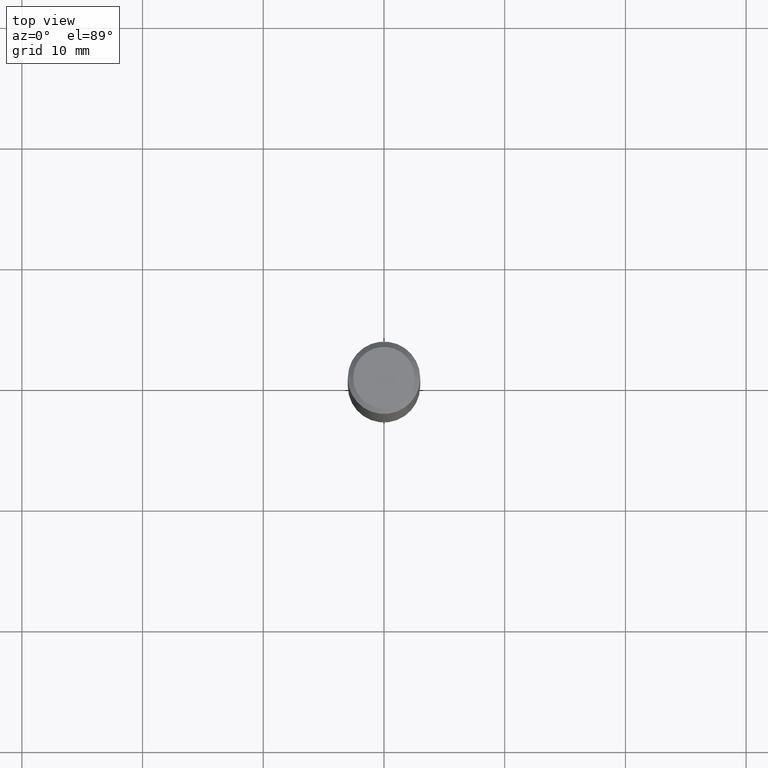
[diagram: clean part render]
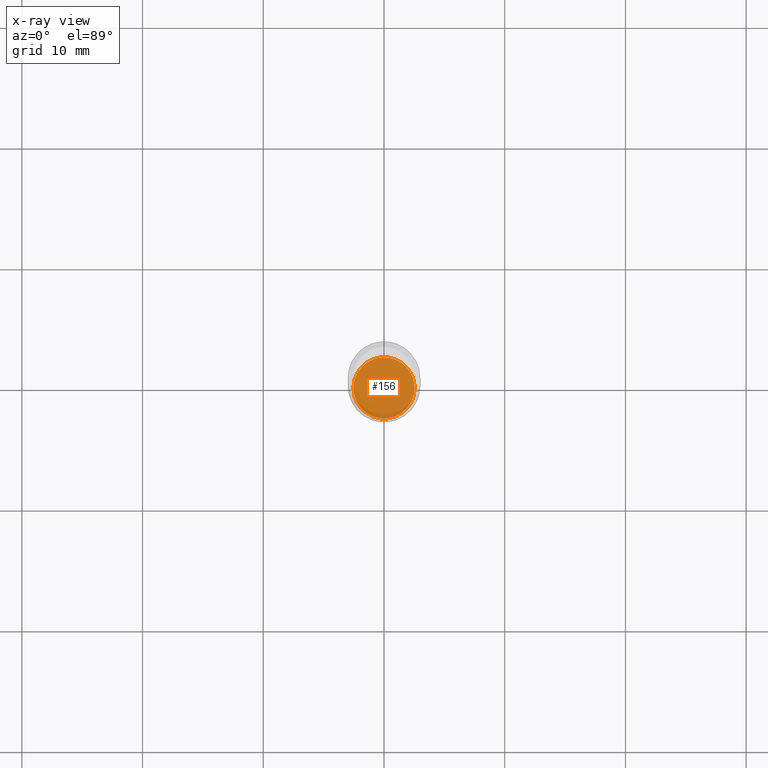
[diagram: x-ray — body ghosted, one internal face saturated and labeled with its STEP entity id]
A machine part, top view, then the same camera in x-ray: the body is ghosted and one INTERNAL B-rep face — a face not visible from any outside direction — is saturated and labeled: STEP entity #156.
In plain terms, the highlighted planar face has unit normal (-0, 0, 1).
Its self-contained STEP definition (entity closure, byte-faithful):
#25 = PLANE ( 'NONE',  #306 ) ;
#32 = EDGE_LOOP ( 'NONE', ( #350, #239 ) ) ;
#76 = AXIS2_PLACEMENT_3D ( 'NONE', #270, #169, #304 ) ;
#122 = CIRCLE ( 'NONE', #282, 0.09990000000000000269 ) ;
#156 = ADVANCED_FACE ( 'NONE', ( #346 ), #25, .F. ) ;
#169 = DIRECTION ( 'NONE',  ( -2.445468806185136597E-29, 3.491481338843145583E-15, 1.000000000000000000 ) ) ;
#172 = CARTESIAN_POINT ( 'NONE',  ( -0.09990000000000000269, -6.047724748069649003E-15, -1.936200000000000143 ) ) ;
#175 = DIRECTION ( 'NONE',  ( -2.438088387897960049E-29, 3.491481338843145188E-15, 1.000000000000000000 ) ) ;
#208 = VERTEX_POINT ( 'NONE', #172 ) ;
#215 = CARTESIAN_POINT ( 'NONE',  ( 0.09990000000000000269, -7.457804139768958280E-15, -1.936200000000000143 ) ) ;
#221 = EDGE_CURVE ( 'NONE', #208, #329, #417, .T. ) ;
#238 = CARTESIAN_POINT ( 'NONE',  ( 4.734916702535661881E-29, -6.760206168268099421E-15, -1.936200000000000143 ) ) ;
#239 = ORIENTED_EDGE ( 'NONE', *, *, #221, .F. ) ;
#270 = CARTESIAN_POINT ( 'NONE',  ( 4.734916702535661881E-29, -6.760206168268099421E-15, -1.936200000000000143 ) ) ;
#282 = AXIS2_PLACEMENT_3D ( 'NONE', #394, #353, #360 ) ;
#304 = DIRECTION ( 'NONE',  ( 1.000000000000000000, -6.982962677686267499E-15, 0.000000000000000000 ) ) ;
#306 = AXIS2_PLACEMENT_3D ( 'NONE', #238, #175, #308 ) ;
#308 = DIRECTION ( 'NONE',  ( 1.000000000000000000, -6.982962677686265922E-15, 4.876176775795935793E-29 ) ) ;
#329 = VERTEX_POINT ( 'NONE', #215 ) ;
#346 = FACE_OUTER_BOUND ( 'NONE', #32, .T. ) ;
#350 = ORIENTED_EDGE ( 'NONE', *, *, #415, .F. ) ;
#353 = DIRECTION ( 'NONE',  ( -2.445468806185136597E-29, 3.491481338843145583E-15, 1.000000000000000000 ) ) ;
#360 = DIRECTION ( 'NONE',  ( 1.000000000000000000, -6.982962677686267499E-15, 0.000000000000000000 ) ) ;
#394 = CARTESIAN_POINT ( 'NONE',  ( 4.734916702535661881E-29, -6.760206168268099421E-15, -1.936200000000000143 ) ) ;
#415 = EDGE_CURVE ( 'NONE', #329, #208, #122, .T. ) ;
#417 = CIRCLE ( 'NONE', #76, 0.09990000000000000269 ) ;